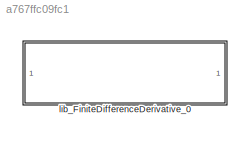
MODEL slx_a767ffc09fc1
KIND library
CONFIG AbsTol = auto
CONFIG EnableMultiTasking = off
CONFIG FixedStep = auto
CONFIG MaxStep = auto
CONFIG MinStep = auto
CONFIG RelTol = 1e-3
CONFIG SampleTimeConstraint = Unconstrained
CONFIG SolverName = VariableStepAuto
CONFIG StartTime = 0.0
CONFIG StopTime = 10.0
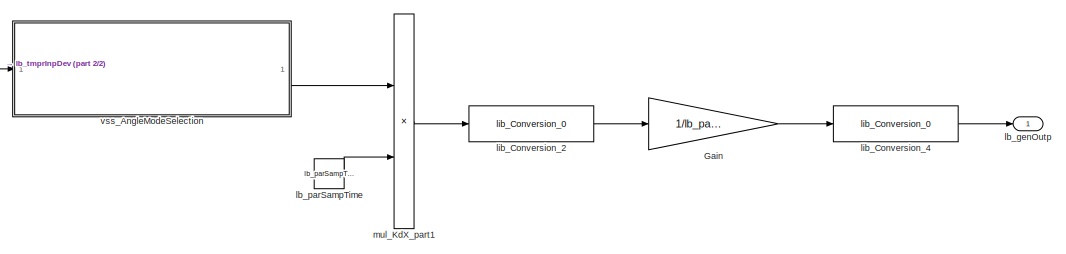
[diagram: lib_FiniteDifferenceDerivative_0 - part 1/2, right side, full height]
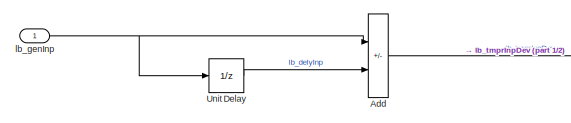
[diagram: lib_FiniteDifferenceDerivative_0 - part 2/2, middle left region]
BLOCK [SubSystem] lib_FiniteDifferenceDerivative_0
BLOCK [Sum] lib_FiniteDifferenceDerivative_0/Add
  IconShape = rectangular
  Inputs = +-
  OutDataTypeStr = Inherit: Inherit via back propagation
  RndMeth = Simplest
BLOCK [Gain] lib_FiniteDifferenceDerivative_0/Gain
  Gain = 1/lb_parOutpPhyPek
  OutDataTypeStr = Inherit: Inherit via back propagation
BLOCK [UnitDelay] lib_FiniteDifferenceDerivative_0/Unit Delay
  HasFrameUpgradeWarning = on
  SampleTime = -1
BLOCK [Inport] lib_FiniteDifferenceDerivative_0/lb_genInp
BLOCK [Outport] lib_FiniteDifferenceDerivative_0/lb_genOutp
BLOCK [Constant] lib_FiniteDifferenceDerivative_0/lb_parSampTime
  Value = lb_parSampTime
BLOCK [Reference] lib_FiniteDifferenceDerivative_0/lib_Conversion_2  REF=lib_conversion/lib_Conversion_0  (lib defined in slx_7f5c0202220d)
  SourceBlock = lib_conversion/lib_Conversion_0
BLOCK [Reference] lib_FiniteDifferenceDerivative_0/lib_Conversion_4  REF=lib_conversion/lib_Conversion_0  (lib defined in slx_7f5c0202220d)
  SourceBlock = lib_conversion/lib_Conversion_0
BLOCK [Product] lib_FiniteDifferenceDerivative_0/mul_KdX_part1
  Inputs = */
  OutDataTypeStr = Inherit: Inherit via back propagation
  RndMeth = Simplest
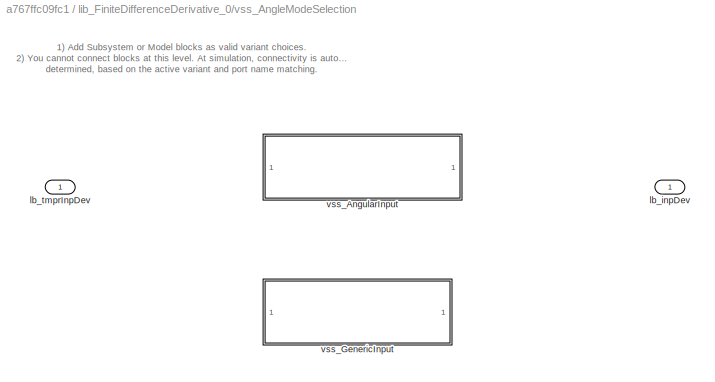
BLOCK [SubSystem] lib_FiniteDifferenceDerivative_0/vss_AngleModeSelection
  LabelModeActiveChoice = lb_parAngInpModeLbl
  Variant = on
  VariantControlMode = label
BLOCK [Outport] lib_FiniteDifferenceDerivative_0/vss_AngleModeSelection/lb_inpDev
BLOCK [Inport] lib_FiniteDifferenceDerivative_0/vss_AngleModeSelection/lb_tmprInpDev
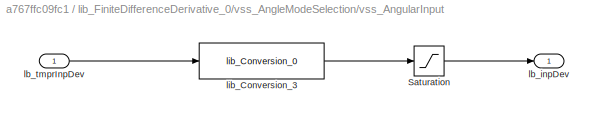
BLOCK [SubSystem] lib_FiniteDifferenceDerivative_0/vss_AngleModeSelection/vss_AngularInput
  VariantControl = lb_parAngInpModeLbl
BLOCK [Saturate] lib_FiniteDifferenceDerivative_0/vss_AngleModeSelection/vss_AngularInput/Saturation
  LowerLimit = -lb_parMaxInpVar
  UpperLimit = lb_parMaxInpVar
BLOCK [Outport] lib_FiniteDifferenceDerivative_0/vss_AngleModeSelection/vss_AngularInput/lb_inpDev
BLOCK [Inport] lib_FiniteDifferenceDerivative_0/vss_AngleModeSelection/vss_AngularInput/lb_tmprInpDev
BLOCK [Reference] lib_FiniteDifferenceDerivative_0/vss_AngleModeSelection/vss_AngularInput/lib_Conversion_3  REF=lib_conversion/lib_Conversion_0  (lib defined in slx_7f5c0202220d)
  SourceBlock = lib_conversion/lib_Conversion_0
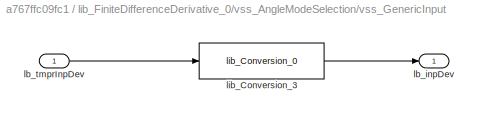
BLOCK [SubSystem] lib_FiniteDifferenceDerivative_0/vss_AngleModeSelection/vss_GenericInput
  VariantControl = lb_parGenInpModeLbl
BLOCK [Outport] lib_FiniteDifferenceDerivative_0/vss_AngleModeSelection/vss_GenericInput/lb_inpDev
BLOCK [Inport] lib_FiniteDifferenceDerivative_0/vss_AngleModeSelection/vss_GenericInput/lb_tmprInpDev
BLOCK [Reference] lib_FiniteDifferenceDerivative_0/vss_AngleModeSelection/vss_GenericInput/lib_Conversion_3  REF=lib_conversion/lib_Conversion_0  (lib defined in slx_7f5c0202220d)
  SourceBlock = lib_conversion/lib_Conversion_0
ANNOTATION lib_FiniteDifferenceDerivative_0/vss_AngleModeSelection: 1) Add Subsystem or Model blocks as valid variant choices. 2) You cannot connect blocks at this level. At simulation, connectivity is automatically determined, based on the active variant and port name matching.
LINE lib_FiniteDifferenceDerivative_0/Add:1 -> lib_FiniteDifferenceDerivative_0/vss_AngleModeSelection:1
LINE lib_FiniteDifferenceDerivative_0/Gain:1 -> lib_FiniteDifferenceDerivative_0/lib_Conversion_4:1
LINE lib_FiniteDifferenceDerivative_0/Unit Delay:1 -> lib_FiniteDifferenceDerivative_0/Add:2
NET lib_FiniteDifferenceDerivative_0/lb_genInp:1 -> lib_FiniteDifferenceDerivative_0/Add:1, lib_FiniteDifferenceDerivative_0/Unit Delay:1
LINE lib_FiniteDifferenceDerivative_0/lb_parSampTime:1 -> lib_FiniteDifferenceDerivative_0/mul_KdX_part1:2
LINE lib_FiniteDifferenceDerivative_0/lib_Conversion_2:1 -> lib_FiniteDifferenceDerivative_0/Gain:1
LINE lib_FiniteDifferenceDerivative_0/lib_Conversion_4:1 -> lib_FiniteDifferenceDerivative_0/lb_genOutp:1
LINE lib_FiniteDifferenceDerivative_0/mul_KdX_part1:1 -> lib_FiniteDifferenceDerivative_0/lib_Conversion_2:1
LINE lib_FiniteDifferenceDerivative_0/vss_AngleModeSelection/vss_AngularInput/Saturation:1 -> lib_FiniteDifferenceDerivative_0/vss_AngleModeSelection/vss_AngularInput/lb_inpDev:1
LINE lib_FiniteDifferenceDerivative_0/vss_AngleModeSelection/vss_AngularInput/lb_tmprInpDev:1 -> lib_FiniteDifferenceDerivative_0/vss_AngleModeSelection/vss_AngularInput/lib_Conversion_3:1
LINE lib_FiniteDifferenceDerivative_0/vss_AngleModeSelection/vss_AngularInput/lib_Conversion_3:1 -> lib_FiniteDifferenceDerivative_0/vss_AngleModeSelection/vss_AngularInput/Saturation:1
LINE lib_FiniteDifferenceDerivative_0/vss_AngleModeSelection/vss_GenericInput/lb_tmprInpDev:1 -> lib_FiniteDifferenceDerivative_0/vss_AngleModeSelection/vss_GenericInput/lib_Conversion_3:1
LINE lib_FiniteDifferenceDerivative_0/vss_AngleModeSelection/vss_GenericInput/lib_Conversion_3:1 -> lib_FiniteDifferenceDerivative_0/vss_AngleModeSelection/vss_GenericInput/lb_inpDev:1
LINE lib_FiniteDifferenceDerivative_0/vss_AngleModeSelection:1 -> lib_FiniteDifferenceDerivative_0/mul_KdX_part1:1
note: NET lines group one-source signal fan-out (src -> all destinations, sorted); 1:1 wires keep LINE
